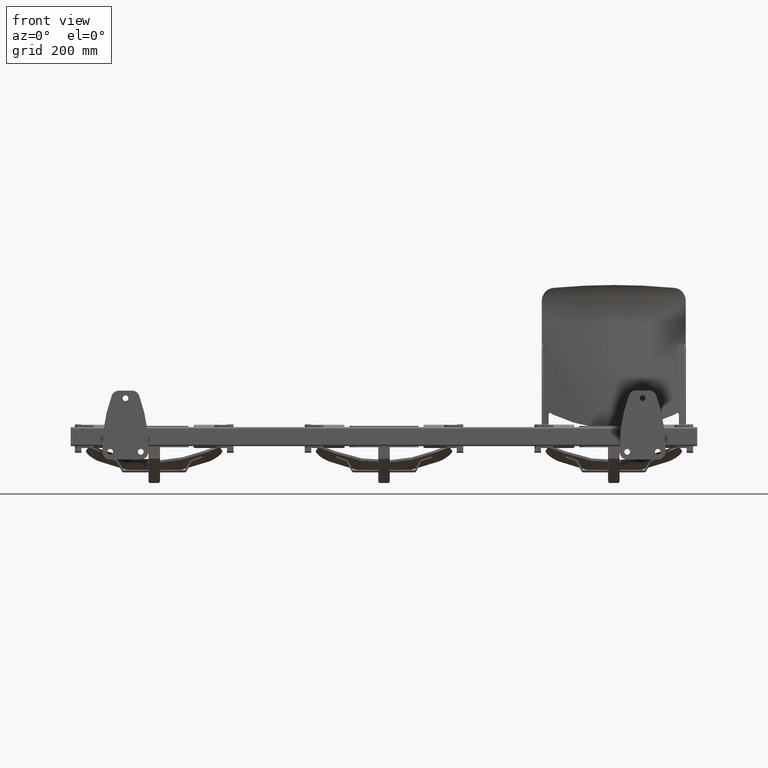
[diagram: clean part render]
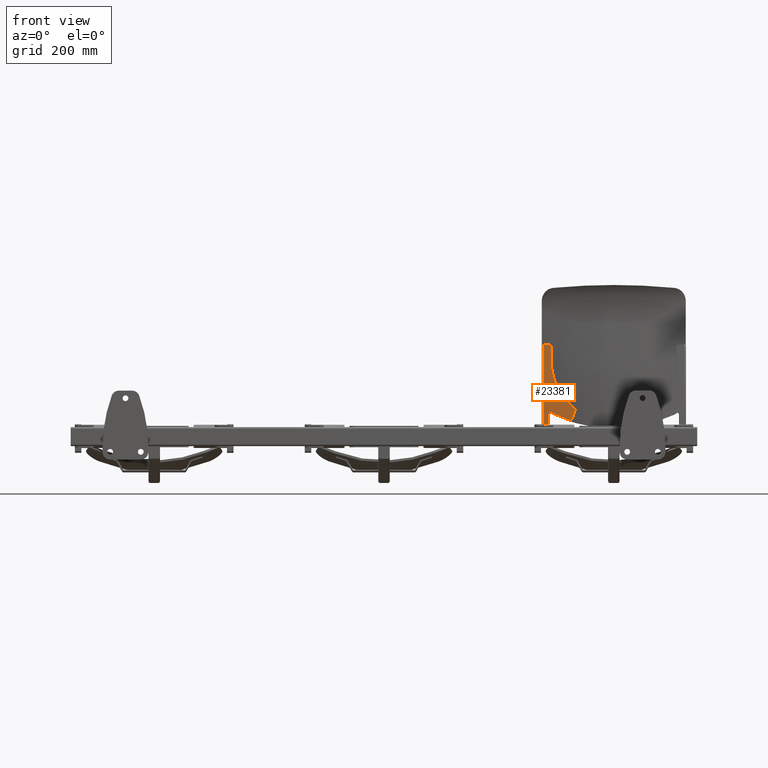
[diagram: same view with one face highlighted and labeled with its STEP entity id]
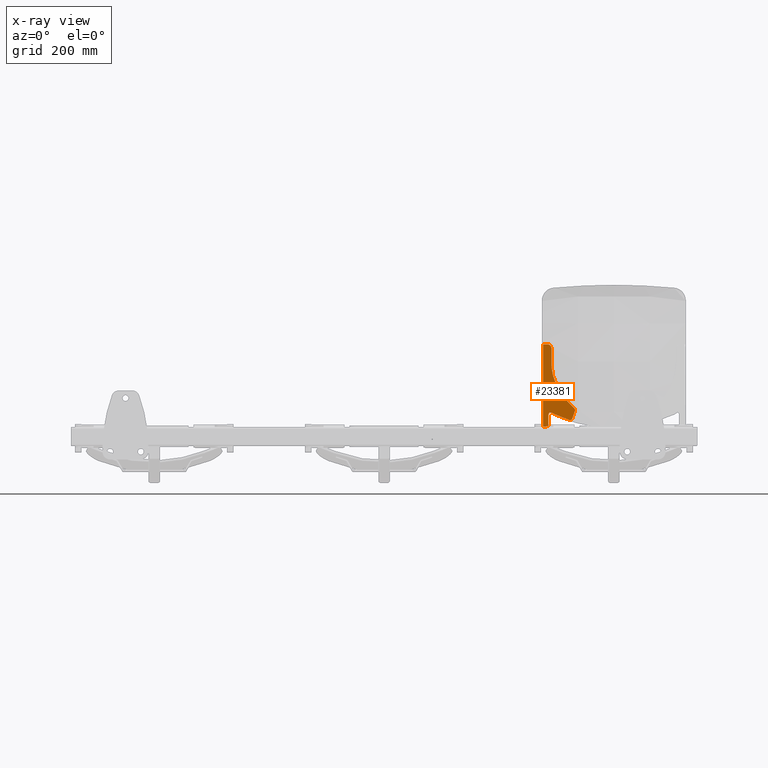
[diagram: x-ray of the same camera — body ghosted, the highlighted face saturated]
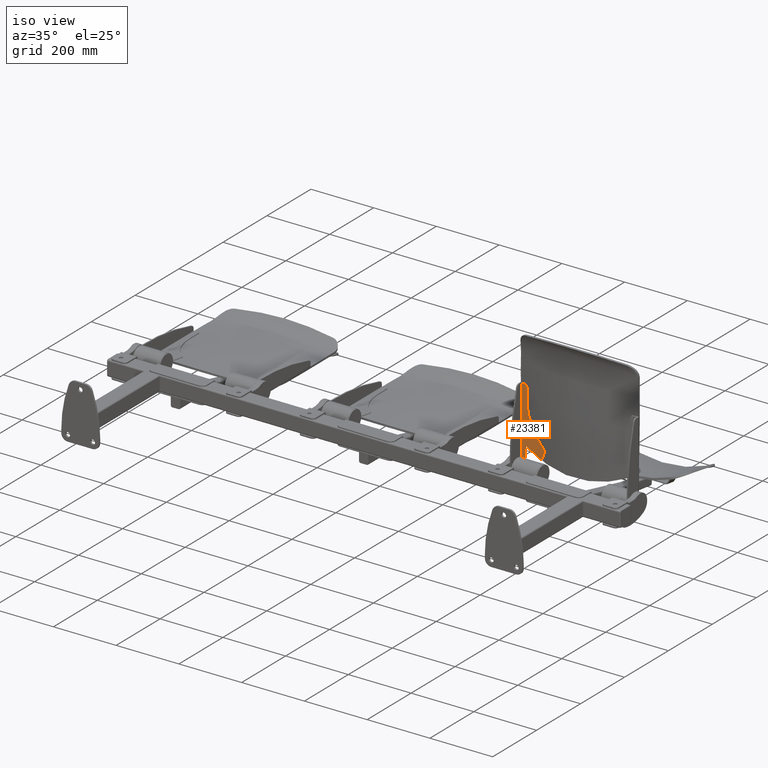
[diagram: same view with one face highlighted and labeled with its STEP entity id]
A machine part, front view. The second image highlights one B-rep face of the part: STEP entity #23381.
The next image is the same camera in x-ray: the body ghosted, the highlighted face saturated — about 0% of this face is hidden behind the body in this view.
A second angle (iso view) of the same face is appended — the face is thin or edge-on in the first view.
In plain terms, the highlighted planar face has unit normal (-0.1564, -0.9877, 0).
Its self-contained STEP definition (entity closure, byte-faithful):
#24 = FACE_OUTER_BOUND ( 'NONE', #1531, .T. ) ;
#531 = AXIS2_PLACEMENT_3D ( 'NONE', #21900, #21901, #21902 ) ;
#838 = VERTEX_POINT ( 'NONE', #11376 ) ;
#840 = VERTEX_POINT ( 'NONE', #11378 ) ;
#841 = VERTEX_POINT ( 'NONE', #11379 ) ;
#847 = VERTEX_POINT ( 'NONE', #11385 ) ;
#864 = VERTEX_POINT ( 'NONE', #11402 ) ;
#891 = VERTEX_POINT ( 'NONE', #11283 ) ;
#1406 = ORIENTED_EDGE ( 'NONE', *, *, #14386, .T. ) ;
#1410 = ORIENTED_EDGE ( 'NONE', *, *, #1906, .T. ) ;
#1411 = ORIENTED_EDGE ( 'NONE', *, *, #1909, .T. ) ;
#1414 = ORIENTED_EDGE ( 'NONE', *, *, #1894, .T. ) ;
#1415 = ORIENTED_EDGE ( 'NONE', *, *, #1897, .T. ) ;
#1416 = ORIENTED_EDGE ( 'NONE', *, *, #1912, .T. ) ;
#1417 = ORIENTED_EDGE ( 'NONE', *, *, #1914, .T. ) ;
#1418 = ORIENTED_EDGE ( 'NONE', *, *, #14387, .T. ) ;
#1419 = ORIENTED_EDGE ( 'NONE', *, *, #14379, .T. ) ;
#1420 = ORIENTED_EDGE ( 'NONE', *, *, #1899, .T. ) ;
#1421 = ORIENTED_EDGE ( 'NONE', *, *, #1903, .T. ) ;
#1424 = ORIENTED_EDGE ( 'NONE', *, *, #1885, .F. ) ;
#1425 = ORIENTED_EDGE ( 'NONE', *, *, #1891, .T. ) ;
#1531 = EDGE_LOOP ( 'NONE', ( #1418, #1419, #1424, #1425, #1414, #1415, #1420, #1421, #1410, #1411, #1416, #1417, #1406 ) ) ;
#1634 = CARTESIAN_POINT ( 'NONE',  ( -156.4679450697689200, 12.92662090743064400, 58.39610516779436700 ) ) ;
#1651 = CARTESIAN_POINT ( 'NONE',  ( -184.5000000000000000, 17.36646223870181400, 240.0000000000000600 ) ) ;
#1885 = EDGE_CURVE ( 'NONE', #23051, #23047, #23332, .T. ) ;
#1891 = EDGE_CURVE ( 'NONE', #23051, #840, #7215, .T. ) ;
#1894 = EDGE_CURVE ( 'NONE', #840, #838, #23319, .T. ) ;
#1897 = EDGE_CURVE ( 'NONE', #838, #10979, #23315, .T. ) ;
#1899 = EDGE_CURVE ( 'NONE', #10979, #23195, #23347, .T. ) ;
#1903 = EDGE_CURVE ( 'NONE', #23195, #891, #23375, .T. ) ;
#1906 = EDGE_CURVE ( 'NONE', #891, #11257, #23374, .T. ) ;
#1909 = EDGE_CURVE ( 'NONE', #11257, #864, #23360, .T. ) ;
#1912 = EDGE_CURVE ( 'NONE', #864, #841, #23361, .T. ) ;
#1914 = EDGE_CURVE ( 'NONE', #841, #847, #7232, .T. ) ;
#3332 = B_SPLINE_CURVE_WITH_KNOTS ( 'NONE', 3,
 ( #19762, #19763, #19770, #19771, #19772, #19773, #19774, #19775, #19776, #19777, #19778, #19779, #19780, #19781, #19782, #19783, #19784, #19785, #19786, #19787, #19788, #19789, #19790, #19791, #19792, #19793, #19794, #19795, #19796, #19797, #19798, #19799, #19800, #19801, #19802, #19803, #19804, #19805, #19806, #19807, #19808, #19809, #19810, #19811, #19812, #19813, #19814, #19815 ),
 .UNSPECIFIED., .F., .F.,
 ( 4, 1, 1, 1, 1, 2, 2, 1, 1, 1, 2, 2, 1, 1, 2, 2, 2, 1, 1, 2, 2, 1, 1, 1, 2, 2, 1, 1, 1, 1, 2, 2, 4 ),
 ( 0.0000000000000000000, 0.06249999999992215900, 0.09374999999988015100, 0.1093749999998595200, 0.1171874999998492000, 0.1210937499998473300, 0.1249999999998454600, 0.1874999999998646600, 0.2187499999998724400, 0.2343749999998779900, 0.2421874999998817100, 0.2499999999998853700, 0.3124999999998908100, 0.3437499999998912500, 0.3593749999998892000, 0.3749999999998871500, 0.4999999999998944200, 0.5624999999998997500, 0.5937499999999007500, 0.6093749999999033000, 0.6249999999999058500, 0.6874999999998991900, 0.7187499999998969700, 0.7343749999998948600, 0.7421874999998947500, 0.7499999999998946400, 0.8124999999999226200, 0.8437499999999367200, 0.8593749999999411600, 0.8671874999999438200, 0.8710937499999457100, 0.8749999999999476000, 1.000000000000000000 ),
 .UNSPECIFIED. ) ;
#7215 = LINE ( 'NONE', #22327, #7218 ) ;
#7218 = VECTOR ( 'NONE', #22329, 1000.000000000000000 ) ;
#7232 = LINE ( 'NONE', #15464, #7240 ) ;
#7240 = VECTOR ( 'NONE', #15525, 1000.000000000000000 ) ;
#10979 = VERTEX_POINT ( 'NONE', #1634 ) ;
#11000 = VERTEX_POINT ( 'NONE', #1651 ) ;
#11257 = VERTEX_POINT ( 'NONE', #22799 ) ;
#11283 = CARTESIAN_POINT ( 'NONE',  ( -108.2284604172176200, 5.286237129192353600, 46.75794247163295100 ) ) ;
#11376 = CARTESIAN_POINT ( 'NONE',  ( -161.3694929007366500, 13.70294981736237900, 61.25785339527701000 ) ) ;
#11378 = CARTESIAN_POINT ( 'NONE',  ( -170.7216098692874800, 15.18417962927588700, 56.36212323050915500 ) ) ;
#11379 = CARTESIAN_POINT ( 'NONE',  ( -162.8201031445264600, 13.93270390895408400, 194.1889626906064200 ) ) ;
#11385 = CARTESIAN_POINT ( 'NONE',  ( -162.8201031445264800, 13.93270390895408400, 230.0000000000000300 ) ) ;
#11402 = CARTESIAN_POINT ( 'NONE',  ( -104.6669652350594200, 4.722151708047689100, 75.03869829316761300 ) ) ;
#14379 = EDGE_CURVE ( 'NONE', #11000, #23047, #18535, .T. ) ;
#14386 = EDGE_CURVE ( 'NONE', #847, #23193, #3332, .T. ) ;
#14387 = EDGE_CURVE ( 'NONE', #23193, #11000, #18546, .T. ) ;
#15313 = CARTESIAN_POINT ( 'NONE',  ( -168.4235427904264700, 14.82020156116222300, 61.13688680795775100 ) ) ;
#15314 = CARTESIAN_POINT ( 'NONE',  ( -167.9903763644841500, 14.75159473922197300, 61.44413525971329900 ) ) ;
#15315 = CARTESIAN_POINT ( 'NONE',  ( -167.2807016268071700, 14.63919330308253600, 61.81571995212224400 ) ) ;
#15316 = CARTESIAN_POINT ( 'NONE',  ( -166.9167514483966100, 14.58154925776896800, 61.97607935634837200 ) ) ;
#15317 = CARTESIAN_POINT ( 'NONE',  ( -166.4761954901666200, 14.51177204889307900, 62.11865767948339800 ) ) ;
#15318 = CARTESIAN_POINT ( 'NONE',  ( -166.2519306568638600, 14.47625198878594900, 62.17881992893542500 ) ) ;
#15319 = CARTESIAN_POINT ( 'NONE',  ( -166.1549628309796300, 14.46089379395378100, 62.20221941181869600 ) ) ;
#15320 = CARTESIAN_POINT ( 'NONE',  ( -166.0901277635240900, 14.45062492808143200, 62.21728921411634200 ) ) ;
#15321 = CARTESIAN_POINT ( 'NONE',  ( -166.0588542349370900, 14.44567168775920200, 62.22429302925439000 ) ) ;
#15322 = CARTESIAN_POINT ( 'NONE',  ( -165.4834668940858900, 14.35453928580866100, 62.34790356054105600 ) ) ;
#15323 = CARTESIAN_POINT ( 'NONE',  ( -164.9355324399976200, 14.26775499396336700, 62.38653049704801400 ) ) ;
#15324 = CARTESIAN_POINT ( 'NONE',  ( -164.1071431496432100, 14.13655101983974800, 62.32812107957990100 ) ) ;
#15325 = CARTESIAN_POINT ( 'NONE',  ( -163.6988026961014700, 14.07187624564368600, 62.27032112628307200 ) ) ;
#15326 = CARTESIAN_POINT ( 'NONE',  ( -163.2326503356650600, 13.99804496492999400, 62.15284616945192700 ) ) ;
#15327 = CARTESIAN_POINT ( 'NONE',  ( -163.0021353642874300, 13.96153498020191800, 62.08159827154016600 ) ) ;
#15328 = CARTESIAN_POINT ( 'NONE',  ( -162.9038920641627600, 13.94597477009604200, 62.04838265397166500 ) ) ;
#15329 = CARTESIAN_POINT ( 'NONE',  ( -162.8385184930720900, 13.93562061362682900, 62.02564317466426000 ) ) ;
#15330 = CARTESIAN_POINT ( 'NONE',  ( -162.8046107180572600, 13.93025014965845000, 62.01350452628800300 ) ) ;
#15331 = CARTESIAN_POINT ( 'NONE',  ( -162.2728022240748900, 13.84601995897923600, 61.81809917678440100 ) ) ;
#15332 = CARTESIAN_POINT ( 'NONE',  ( -161.8048572358304700, 13.77190475391346100, 61.57004694388865600 ) ) ;
#15333 = CARTESIAN_POINT ( 'NONE',  ( -161.3694929007366500, 13.70294981736237900, 61.25785339527701000 ) ) ;
#15334 = CARTESIAN_POINT ( 'NONE',  ( -161.3694929007366500, 13.70294981736237900, 61.25785339527701000 ) ) ;
#15336 = CARTESIAN_POINT ( 'NONE',  ( -159.8123508253176800, 13.45632274124134600, 60.14092830488886000 ) ) ;
#15340 = CARTESIAN_POINT ( 'NONE',  ( -153.1572290060092600, 12.40225499659859700, 56.86549616546415100 ) ) ;
#15343 = CARTESIAN_POINT ( 'NONE',  ( -158.1785014543505100, 13.19754642304612000, 59.18701218561312100 ) ) ;
#15344 = CARTESIAN_POINT ( 'NONE',  ( -156.4679450697689200, 12.92662090743064400, 58.39610516779436700 ) ) ;
#15345 = CARTESIAN_POINT ( 'NONE',  ( -156.4679450697689200, 12.92662090743064400, 58.39610516779436700 ) ) ;
#15349 = CARTESIAN_POINT ( 'NONE',  ( -148.1591641727549100, 11.61063929527788100, 54.64200151654588900 ) ) ;
#15350 = CARTESIAN_POINT ( 'NONE',  ( -142.2721040030562300, 10.67822056514329200, 52.17465707949674700 ) ) ;
#15351 = CARTESIAN_POINT ( 'NONE',  ( -139.3145777854813000, 10.20979443042755200, 50.97266802431105500 ) ) ;
#15352 = CARTESIAN_POINT ( 'NONE',  ( -138.0440673780794900, 10.00856535062471600, 50.46431910708980700 ) ) ;
#15353 = CARTESIAN_POINT ( 'NONE',  ( -137.1963939573008100, 9.874307070296705300, 50.12692855100603900 ) ) ;
#15354 = CARTESIAN_POINT ( 'NONE',  ( -136.7711029137859100, 9.806947586394558800, 49.95854610259685600 ) ) ;
#15355 = CARTESIAN_POINT ( 'NONE',  ( -129.5736071962786600, 8.666976255438951800, 47.12388068475492300 ) ) ;
#15356 = CARTESIAN_POINT ( 'NONE',  ( -122.7358951683104500, 7.583989062788877100, 44.65618467251363200 ) ) ;
#15357 = CARTESIAN_POINT ( 'NONE',  ( -115.8345847287967700, 6.490928871320640800, 42.38871304127606300 ) ) ;
#15363 = CARTESIAN_POINT ( 'NONE',  ( -115.8345847287967700, 6.490928871320640800, 42.38871304127606300 ) ) ;
#15364 = CARTESIAN_POINT ( 'NONE',  ( -115.6410349692736600, 6.460273600983619200, 42.32515793097505300 ) ) ;
#15369 = CARTESIAN_POINT ( 'NONE',  ( -115.3474983850701800, 6.413781973379772500, 42.24528675955198800 ) ) ;
#15370 = CARTESIAN_POINT ( 'NONE',  ( -115.0491438836115800, 6.366527262647951900, 42.18860782921206000 ) ) ;
#15371 = CARTESIAN_POINT ( 'NONE',  ( -114.8491702343602900, 6.334854548131629000, 42.15597570700391100 ) ) ;
#15372 = CARTESIAN_POINT ( 'NONE',  ( -114.7508434787959700, 6.319281119982648900, 42.14247905213682800 ) ) ;
#15373 = CARTESIAN_POINT ( 'NONE',  ( -114.2345791482694200, 6.237512882932681400, 42.08545545057027900 ) ) ;
#15374 = CARTESIAN_POINT ( 'NONE',  ( -113.8203749487639600, 6.171909382613934600, 42.08396964892765600 ) ) ;
#15375 = CARTESIAN_POINT ( 'NONE',  ( -113.2003614459112300, 6.073708890970951100, 42.14762415862247700 ) ) ;
#15376 = CARTESIAN_POINT ( 'NONE',  ( -112.8935661061555600, 6.025117282789577400, 42.19565319218608600 ) ) ;
#15377 = CARTESIAN_POINT ( 'NONE',  ( -112.5412581801977200, 5.969317189114846700, 42.28004017743028700 ) ) ;
#15378 = CARTESIAN_POINT ( 'NONE',  ( -112.3914733484494800, 5.945593602369296300, 42.32228169526777600 ) ) ;
#15379 = CARTESIAN_POINT ( 'NONE',  ( -112.2918844115898200, 5.929820264342267500, 42.35179285538579600 ) ) ;
#15380 = CARTESIAN_POINT ( 'NONE',  ( -112.2410701512538500, 5.921772076158448300, 42.36759865111339700 ) ) ;
#15381 = CARTESIAN_POINT ( 'NONE',  ( -111.8057109006709900, 5.852817944914775700, 42.50917393168298000 ) ) ;
#15382 = CARTESIAN_POINT ( 'NONE',  ( -111.4345697974535900, 5.794034969000260400, 42.67412374831705800 ) ) ;
#15383 = CARTESIAN_POINT ( 'NONE',  ( -110.9042630432515600, 5.710042630535647300, 42.97869134798521200 ) ) ;
#15384 = CARTESIAN_POINT ( 'NONE',  ( -110.6480677733735500, 5.669465286102226100, 43.14393673357950800 ) ) ;
#15385 = CARTESIAN_POINT ( 'NONE',  ( -110.4053096643299500, 5.631016178867117400, 43.32862449781411800 ) ) ;
#15386 = CARTESIAN_POINT ( 'NONE',  ( -110.2464569607085800, 5.605856382310006900, 43.45607020255727800 ) ) ;
#15387 = CARTESIAN_POINT ( 'NONE',  ( -110.1700878149143400, 5.593760697895319800, 43.52056095645640700 ) ) ;
#15388 = CARTESIAN_POINT ( 'NONE',  ( -109.7800652938363200, 5.531987199180411700, 43.86773967507710400 ) ) ;
#15389 = CARTESIAN_POINT ( 'NONE',  ( -109.4994044216353300, 5.487534884015868600, 44.17616245662567600 ) ) ;
#15390 = CARTESIAN_POINT ( 'NONE',  ( -109.1272984559987300, 5.428599088907087200, 44.68230048062412200 ) ) ;
#15391 = CARTESIAN_POINT ( 'NONE',  ( -108.9552202315044600, 5.401344575628527900, 44.94390627015295100 ) ) ;
#15392 = CARTESIAN_POINT ( 'NONE',  ( -108.7789181299949600, 5.373421065952907600, 45.26405238528003100 ) ) ;
#15393 = CARTESIAN_POINT ( 'NONE',  ( -108.7086006208624300, 5.362283866623935000, 45.40445915476523500 ) ) ;
#15394 = CARTESIAN_POINT ( 'NONE',  ( -108.6628868446344100, 5.355043515760940000, 45.49877506588281800 ) ) ;
#15395 = CARTESIAN_POINT ( 'NONE',  ( -108.6400982309135800, 5.351434153930998900, 45.54742300153415600 ) ) ;
#15396 = CARTESIAN_POINT ( 'NONE',  ( -108.4494933714632600, 5.321245309943818400, 45.96803865545133000 ) ) ;
#15397 = CARTESIAN_POINT ( 'NONE',  ( -108.3193402061368600, 5.300631073697124100, 46.35596678793177000 ) ) ;
#15398 = CARTESIAN_POINT ( 'NONE',  ( -108.2284604172176200, 5.286237129192353600, 46.75794247163295100 ) ) ;
#15400 = CARTESIAN_POINT ( 'NONE',  ( -107.5515076543958500, 5.179018344726669600, 49.75433132830728800 ) ) ;
#15405 = CARTESIAN_POINT ( 'NONE',  ( -108.2284604172176200, 5.286237129192353600, 46.75794247163295100 ) ) ;
#15407 = CARTESIAN_POINT ( 'NONE',  ( -106.7037394702512600, 5.044745055355983600, 52.70052557418326000 ) ) ;
#15408 = CARTESIAN_POINT ( 'NONE',  ( -104.6672961910739200, 4.722204126330824500, 58.49046658805573200 ) ) ;
#15409 = CARTESIAN_POINT ( 'NONE',  ( -103.4850905575212700, 4.534961148712080900, 61.31569219610351200 ) ) ;
#15410 = CARTESIAN_POINT ( 'NONE',  ( -102.1389009300046700, 4.321745657987156300, 64.07117290526275600 ) ) ;
#15411 = CARTESIAN_POINT ( 'NONE',  ( -102.1389009300046700, 4.321745657987156300, 64.07117290526275600 ) ) ;
#15412 = CARTESIAN_POINT ( 'NONE',  ( -102.0331293887796600, 4.304993091627983000, 64.28772808163951400 ) ) ;
#15417 = CARTESIAN_POINT ( 'NONE',  ( -101.8880306294758600, 4.282011705843864900, 64.61794427587291500 ) ) ;
#15418 = CARTESIAN_POINT ( 'NONE',  ( -101.7424762105553000, 4.258958150666371600, 65.01261750439795200 ) ) ;
#15419 = CARTESIAN_POINT ( 'NONE',  ( -101.6756308678285000, 4.248370888470286200, 65.21230936914034300 ) ) ;
#15420 = CARTESIAN_POINT ( 'NONE',  ( -101.6482539781027700, 4.244034815113248100, 65.29839629341849200 ) ) ;
#15421 = CARTESIAN_POINT ( 'NONE',  ( -101.6302851881300700, 4.241188838370114000, 65.35589973105534500 ) ) ;
#15422 = CARTESIAN_POINT ( 'NONE',  ( -101.6218392029677500, 4.239851125737189400, 65.38339011692571000 ) ) ;
#15423 = CARTESIAN_POINT ( 'NONE',  ( -101.5399473025744000, 4.226880722926279300, 65.65502167241858400 ) ) ;
#15424 = CARTESIAN_POINT ( 'NONE',  ( -101.4463248155890900, 4.212052377723318300, 66.02070359308612500 ) ) ;
#15425 = CARTESIAN_POINT ( 'NONE',  ( -101.3643403294662900, 4.199067310773466800, 66.45346889888300300 ) ) ;
#15426 = CARTESIAN_POINT ( 'NONE',  ( -101.3350416387051400, 4.194426854035017800, 66.64025468672841200 ) ) ;
#15427 = CARTESIAN_POINT ( 'NONE',  ( -101.3168064043259600, 4.191538676643684600, 66.76507075473730900 ) ) ;
#15428 = CARTESIAN_POINT ( 'NONE',  ( -101.3085740505826600, 4.190234799903493900, 66.82572754121501600 ) ) ;
#15429 = CARTESIAN_POINT ( 'NONE',  ( -101.2682888433653500, 4.183854249905029300, 67.14871551971090500 ) ) ;
#15430 = CARTESIAN_POINT ( 'NONE',  ( -101.2368974357160300, 4.178882339373488200, 67.53707465536678000 ) ) ;
#15431 = CARTESIAN_POINT ( 'NONE',  ( -101.2309322895838200, 4.177937553041882500, 67.92659413321385400 ) ) ;
#15432 = CARTESIAN_POINT ( 'NONE',  ( -101.2326058058327500, 4.178202611976345800, 68.18653163893213800 ) ) ;
#15433 = CARTESIAN_POINT ( 'NONE',  ( -101.2361720641142900, 4.178767451798316700, 68.31470935564944100 ) ) ;
#15434 = CARTESIAN_POINT ( 'NONE',  ( -101.2690854564799000, 4.183980421027329500, 68.97544220430626200 ) ) ;
#15435 = CARTESIAN_POINT ( 'NONE',  ( -101.3418714959240500, 4.195508597148135600, 69.49845729042154100 ) ) ;
#15436 = CARTESIAN_POINT ( 'NONE',  ( -101.5200323683374400, 4.223726507213059200, 70.27158040469835500 ) ) ;
#15437 = CARTESIAN_POINT ( 'NONE',  ( -101.6257867601364200, 4.240476357369995100, 70.65270976212903500 ) ) ;
#15438 = CARTESIAN_POINT ( 'NONE',  ( -101.7783463061882300, 4.264639415687574000, 71.08785432964303700 ) ) ;
#15439 = CARTESIAN_POINT ( 'NONE',  ( -101.8499817021289100, 4.275985347781068300, 71.27230778368721100 ) ) ;
#15440 = CARTESIAN_POINT ( 'NONE',  ( -101.8991281290554000, 4.283769377103771700, 71.39482406974100600 ) ) ;
#15441 = CARTESIAN_POINT ( 'NONE',  ( -101.9248403085120200, 4.287841786256534800, 71.45689624287921000 ) ) ;
#15442 = CARTESIAN_POINT ( 'NONE',  ( -102.0524327681066000, 4.308050446559052600, 71.75572168263993000 ) ) ;
#15443 = CARTESIAN_POINT ( 'NONE',  ( -102.2205264753483400, 4.334673874302613000, 72.10624795337631100 ) ) ;
#15444 = CARTESIAN_POINT ( 'NONE',  ( -102.4428556229881900, 4.369887351919380200, 72.50108281952670100 ) ) ;
#15445 = CARTESIAN_POINT ( 'NONE',  ( -102.5437580768033700, 4.385868730594267200, 72.66727366579633000 ) ) ;
#15446 = CARTESIAN_POINT ( 'NONE',  ( -102.6122749423241800, 4.396720735992572800, 72.77739554189479100 ) ) ;
#15447 = CARTESIAN_POINT ( 'NONE',  ( -102.6482927005761800, 4.402425388475060200, 72.83385910728156900 ) ) ;
#15448 = CARTESIAN_POINT ( 'NONE',  ( -102.8201524592504200, 4.429645300166988000, 73.09711050022949100 ) ) ;
#15449 = CARTESIAN_POINT ( 'NONE',  ( -103.0389685126274800, 4.464302358315141100, 73.40309533603981200 ) ) ;
#15450 = CARTESIAN_POINT ( 'NONE',  ( -103.3162765084280900, 4.508223630027536900, 73.74272318196270200 ) ) ;
#15451 = CARTESIAN_POINT ( 'NONE',  ( -103.4604361563769000, 4.531056275185290100, 73.90819848929355400 ) ) ;
#15452 = CARTESIAN_POINT ( 'NONE',  ( -103.5233986447939300, 4.541028553674662400, 73.97818677480019300 ) ) ;
#15453 = CARTESIAN_POINT ( 'NONE',  ( -103.5656358108837300, 4.547718263586696200, 74.02463903106031800 ) ) ;
#15454 = CARTESIAN_POINT ( 'NONE',  ( -103.5878614361220100, 4.551238456800918500, 74.04881261813496000 ) ) ;
#15455 = CARTESIAN_POINT ( 'NONE',  ( -103.9347430628010000, 4.606179109101333300, 74.42228167530841200 ) ) ;
#15456 = CARTESIAN_POINT ( 'NONE',  ( -104.2876427285903600, 4.662072925158094300, 74.74492064429631500 ) ) ;
#15457 = CARTESIAN_POINT ( 'NONE',  ( -104.6669652350594200, 4.722151708047689100, 75.03869829316761300 ) ) ;
#15458 = CARTESIAN_POINT ( 'NONE',  ( -106.8677948081333500, 5.070728868228693300, 76.74282176865770600 ) ) ;
#15459 = CARTESIAN_POINT ( 'NONE',  ( -104.6669652350594200, 4.722151708047689100, 75.03869829316761300 ) ) ;
#15464 = CARTESIAN_POINT ( 'NONE',  ( -162.8201031445264000, 13.93270390895408400, 24.00000000000002100 ) ) ;
#15466 = CARTESIAN_POINT ( 'NONE',  ( -110.0932179778923700, 5.581585711780756600, 79.38840320280940000 ) ) ;
#15467 = CARTESIAN_POINT ( 'NONE',  ( -113.7235245937038400, 6.156569793332511900, 82.63135826259046700 ) ) ;
#15468 = CARTESIAN_POINT ( 'NONE',  ( -115.5055061310494000, 6.438807941793639200, 84.29194663913203600 ) ) ;
#15469 = CARTESIAN_POINT ( 'NONE',  ( -116.3882039570821400, 6.578613542945517700, 85.13201853906559800 ) ) ;
#15470 = CARTESIAN_POINT ( 'NONE',  ( -116.8274796344384600, 6.648187975251781600, 85.55449891694800600 ) ) ;
#15471 = CARTESIAN_POINT ( 'NONE',  ( -117.0152963742355300, 6.677935224468114100, 85.73608574202246800 ) ) ;
#15472 = CARTESIAN_POINT ( 'NONE',  ( -117.1404088085925800, 6.697751087361394800, 85.85726002673476400 ) ) ;
#15473 = CARTESIAN_POINT ( 'NONE',  ( -117.2016648715890300, 6.707453094615574200, 85.91668970338665200 ) ) ;
#15474 = CARTESIAN_POINT ( 'NONE',  ( -119.3040382138613500, 7.040436319784589600, 87.96002363517823100 ) ) ;
#15475 = CARTESIAN_POINT ( 'NONE',  ( -122.2734029487180600, 7.510737491434285900, 91.01569463692985100 ) ) ;
#15476 = CARTESIAN_POINT ( 'NONE',  ( -125.5825543117207100, 8.034855578012624700, 94.72685474747847000 ) ) ;
#15477 = CARTESIAN_POINT ( 'NONE',  ( -127.1983531196395300, 8.290772967881896000, 96.61898745487909000 ) ) ;
#15478 = CARTESIAN_POINT ( 'NONE',  ( -127.9965583052033200, 8.417196249461554200, 97.57419197161094400 ) ) ;
#15479 = CARTESIAN_POINT ( 'NONE',  ( -128.3932373433862900, 8.480024036912638500, 98.05407877073476200 ) ) ;
#15480 = CARTESIAN_POINT ( 'NONE',  ( -128.5627233123363700, 8.506867977247655000, 98.26023408623591100 ) ) ;
#15481 = CARTESIAN_POINT ( 'NONE',  ( -128.6755985509412900, 8.524745658740590300, 98.39777975089188500 ) ) ;
#15482 = CARTESIAN_POINT ( 'NONE',  ( -128.7312221230140200, 8.533555567072184500, 98.46568197486608700 ) ) ;
#15483 = CARTESIAN_POINT ( 'NONE',  ( -130.6148144541620900, 8.831887284240650600, 100.7693005062921300 ) ) ;
#15484 = CARTESIAN_POINT ( 'NONE',  ( -133.2544042283327300, 9.249957233309039900, 104.1946865770359100 ) ) ;
#15485 = CARTESIAN_POINT ( 'NONE',  ( -136.1586090752263700, 9.709938092572079100, 108.3216396882266300 ) ) ;
#15486 = CARTESIAN_POINT ( 'NONE',  ( -137.5668823595967800, 9.932986668541088800, 110.4177835843194700 ) ) ;
#15487 = CARTESIAN_POINT ( 'NONE',  ( -138.2600617170129200, 10.04277549310995900, 111.4740223674902600 ) ) ;
#15488 = CARTESIAN_POINT ( 'NONE',  ( -138.5547905948836800, 10.08945596147899300, 111.9284461678044500 ) ) ;
#15489 = CARTESIAN_POINT ( 'NONE',  ( -138.7507547379988800, 10.12049363260998200, 112.2317842649245400 ) ) ;
#15490 = CARTESIAN_POINT ( 'NONE',  ( -138.8478228032255700, 10.13586770379428600, 112.3826287636790700 ) ) ;
#15491 = CARTESIAN_POINT ( 'NONE',  ( -142.0855654880227200, 10.64867576684073700, 117.4341679068212200 ) ) ;
#15492 = CARTESIAN_POINT ( 'NONE',  ( -144.9333989152730200, 11.09972827035327100, 122.5019154507100900 ) ) ;
#15493 = CARTESIAN_POINT ( 'NONE',  ( -148.7660924654823900, 11.70676729323864200, 130.3546725056249300 ) ) ;
#15494 = CARTESIAN_POINT ( 'NONE',  ( -150.5663752408099200, 11.99190407303478300, 134.3309614368487200 ) ) ;
#15495 = CARTESIAN_POINT ( 'NONE',  ( -152.4635931457484600, 12.29239386908215400, 139.0573083965340100 ) ) ;
#15496 = CARTESIAN_POINT ( 'NONE',  ( -153.3614240983150700, 12.43459632201046400, 141.4423176780242700 ) ) ;
#15497 = CARTESIAN_POINT ( 'NONE',  ( -153.7976450746228100, 12.50368693720079000, 142.6402812691814300 ) ) ;
#15498 = CARTESIAN_POINT ( 'NONE',  ( -153.9818766716169900, 12.53286635558081000, 143.1548640119084400 ) ) ;
#15499 = CARTESIAN_POINT ( 'NONE',  ( -154.1040932362810200, 12.55222355777350200, 143.4981791237461300 ) ) ;
#15500 = CARTESIAN_POINT ( 'NONE',  ( -154.1653162733112500, 12.56192033422850700, 143.6711515460124200 ) ) ;
#15501 = CARTESIAN_POINT ( 'NONE',  ( -155.1867914931148400, 12.72370611522247500, 146.5736059942250100 ) ) ;
#15502 = CARTESIAN_POINT ( 'NONE',  ( -156.5095064132990800, 12.93320357756477200, 150.7066463367087600 ) ) ;
#15503 = CARTESIAN_POINT ( 'NONE',  ( -157.8437802698120700, 13.14453179556823600, 155.5905775223888600 ) ) ;
#15504 = CARTESIAN_POINT ( 'NONE',  ( -158.4586938104764600, 13.24192453255433400, 158.0480558117577900 ) ) ;
#15505 = CARTESIAN_POINT ( 'NONE',  ( -158.7530947339105000, 13.28855305804348300, 159.2806731305745400 ) ) ;
#15506 = CARTESIAN_POINT ( 'NONE',  ( -158.8970312339031400, 13.31135036003707300, 159.8979513335160900 ) ) ;
#15507 = CARTESIAN_POINT ( 'NONE',  ( -158.9580188849590500, 13.32100985501626800, 160.1627068941051800 ) ) ;
#15508 = CARTESIAN_POINT ( 'NONE',  ( -158.9985218922474000, 13.32742490115710300, 160.3392567699041800 ) ) ;
#15509 = CARTESIAN_POINT ( 'NONE',  ( -159.0189666742940600, 13.33066303651912000, 160.4287457855074600 ) ) ;
#15510 = CARTESIAN_POINT ( 'NONE',  ( -159.6731944832080200, 13.43428254187869800, 163.3040395245830000 ) ) ;
#15511 = CARTESIAN_POINT ( 'NONE',  ( -160.5054494033012700, 13.56609877160501100, 167.5070636326752300 ) ) ;
#15512 = CARTESIAN_POINT ( 'NONE',  ( -161.2675524369439000, 13.68680403405812600, 172.4469544302974400 ) ) ;
#15513 = CARTESIAN_POINT ( 'NONE',  ( -161.5963886938153600, 13.73888658056112700, 174.9259904969871700 ) ) ;
#15514 = CARTESIAN_POINT ( 'NONE',  ( -161.7477530072635300, 13.76286033263173200, 176.1677811973018500 ) ) ;
#15515 = CARTESIAN_POINT ( 'NONE',  ( -161.8201717102408600, 13.77433032837181200, 176.7892447142014600 ) ) ;
#15516 = CARTESIAN_POINT ( 'NONE',  ( -161.8505089857139000, 13.77913528076858700, 177.0557079714604400 ) ) ;
#15517 = CARTESIAN_POINT ( 'NONE',  ( -161.8705784334699400, 13.78231396901904100, 177.2333771985255200 ) ) ;
#15518 = CARTESIAN_POINT ( 'NONE',  ( -161.8807311445878300, 13.78392200048722700, 177.3239855020907500 ) ) ;
#15519 = CARTESIAN_POINT ( 'NONE',  ( -162.5101672765265400, 13.88361488996438100, 182.9855834466034100 ) ) ;
#15520 = CARTESIAN_POINT ( 'NONE',  ( -162.8200633989063400, 13.93269761386625700, 188.5782086738291200 ) ) ;
#15521 = CARTESIAN_POINT ( 'NONE',  ( -162.8201031445264600, 13.93270390895408400, 194.1889626906064200 ) ) ;
#15525 = DIRECTION ( 'NONE',  ( 0.0000000000000000000, -2.465190328815658600E-032, 1.000000000000000000 ) ) ;
#18535 = LINE ( 'NONE', #19736, #18539 ) ;
#18539 = VECTOR ( 'NONE', #19740, 1000.000000000000000 ) ;
#18546 = LINE ( 'NONE', #19768, #18548 ) ;
#18548 = VECTOR ( 'NONE', #19816, 1000.000000000000100 ) ;
#19736 = CARTESIAN_POINT ( 'NONE',  ( -184.5000000000000000, 17.36646223870187800, 24.00000000000002100 ) ) ;
#19740 = DIRECTION ( 'NONE',  ( -0.0000000000000000000, 2.465190328815658600E-032, -1.000000000000000000 ) ) ;
#19762 = CARTESIAN_POINT ( 'NONE',  ( -162.8201031445264800, 13.93270390895408400, 230.0000000000000300 ) ) ;
#19763 = CARTESIAN_POINT ( 'NONE',  ( -162.8201351925240800, 13.93270898485821400, 230.3059110531486600 ) ) ;
#19768 = CARTESIAN_POINT ( 'NONE',  ( -172.6969865504779300, 15.49704855935636700, 240.0000000000000600 ) ) ;
#19770 = CARTESIAN_POINT ( 'NONE',  ( -162.8407705947290900, 13.93597731148733100, 230.7627981585250400 ) ) ;
#19771 = CARTESIAN_POINT ( 'NONE',  ( -162.9008730585001400, 13.94549660657382800, 231.2923690346919200 ) ) ;
#19772 = CARTESIAN_POINT ( 'NONE',  ( -162.9399312473519800, 13.95168281595521800, 231.5562884527490700 ) ) ;
#19773 = CARTESIAN_POINT ( 'NONE',  ( -162.9617120810195300, 13.95513256110545300, 231.6880316567709000 ) ) ;
#19774 = CARTESIAN_POINT ( 'NONE',  ( -162.9715292395716500, 13.95668744626830300, 231.7444466359932000 ) ) ;
#19775 = CARTESIAN_POINT ( 'NONE',  ( -162.9781812376178300, 13.95774101925589700, 231.7820463123790700 ) ) ;
#19776 = CARTESIAN_POINT ( 'NONE',  ( -162.9813541823784000, 13.95824356433598200, 231.7997099373654900 ) ) ;
#19777 = CARTESIAN_POINT ( 'NONE',  ( -163.0432323430280800, 13.96804410217878700, 232.1383599122217400 ) ) ;
#19778 = CARTESIAN_POINT ( 'NONE',  ( -163.1529837739738000, 13.98542702114394300, 232.6100715247339700 ) ) ;
#19779 = CARTESIAN_POINT ( 'NONE',  ( -163.3202166585094800, 14.01191410796498400, 233.1492324174653600 ) ) ;
#19780 = CARTESIAN_POINT ( 'NONE',  ( -163.4136304878853400, 14.02670940504926000, 233.4160205333643900 ) ) ;
#19781 = CARTESIAN_POINT ( 'NONE',  ( -163.4557644262839600, 14.03338276530117800, 233.5297599407925900 ) ) ;
#19782 = CARTESIAN_POINT ( 'NONE',  ( -163.4843202607928000, 14.03790556516787700, 233.6054532442937600 ) ) ;
#19783 = CARTESIAN_POINT ( 'NONE',  ( -163.4982284856434100, 14.04010841157672700, 233.6416911394017900 ) ) ;
#19784 = CARTESIAN_POINT ( 'NONE',  ( -163.6363552928537800, 14.06198554863056700, 233.9949947453569100 ) ) ;
#19785 = CARTESIAN_POINT ( 'NONE',  ( -163.8430027767690500, 14.09471529471496400, 234.4544242874393400 ) ) ;
#19786 = CARTESIAN_POINT ( 'NONE',  ( -164.1234287213642600, 14.13913040100215600, 234.9700520379515200 ) ) ;
#19787 = CARTESIAN_POINT ( 'NONE',  ( -164.2520406719109500, 14.15950053280853100, 235.1866696349027800 ) ) ;
#19788 = CARTESIAN_POINT ( 'NONE',  ( -164.3396551729115600, 14.17337730651383900, 235.3301112051599900 ) ) ;
#19789 = CARTESIAN_POINT ( 'NONE',  ( -164.3834675825379700, 14.18031651049177100, 235.3999042785317200 ) ) ;
#19790 = CARTESIAN_POINT ( 'NONE',  ( -164.8029746134959900, 14.24675989680227800, 236.0496435764116300 ) ) ;
#19791 = CARTESIAN_POINT ( 'NONE',  ( -165.2311052768377800, 14.31456913230142500, 236.5831386559384800 ) ) ;
#19792 = CARTESIAN_POINT ( 'NONE',  ( -165.9539103372923100, 14.42905020726526600, 237.3150323898294400 ) ) ;
#19793 = CARTESIAN_POINT ( 'NONE',  ( -166.3320221399750900, 14.48893723351326700, 237.6603667358423300 ) ) ;
#19794 = CARTESIAN_POINT ( 'NONE',  ( -166.8023938032352500, 14.56343678614325100, 238.0271848945585600 ) ) ;
#19795 = CARTESIAN_POINT ( 'NONE',  ( -167.0102476360889100, 14.59635759912909900, 238.1766629815157900 ) ) ;
#19796 = CARTESIAN_POINT ( 'NONE',  ( -167.1502092973627200, 14.61852534851683800, 238.2745973294095200 ) ) ;
#19797 = CARTESIAN_POINT ( 'NONE',  ( -167.2224571779486600, 14.62996828864807600, 238.3237455458557000 ) ) ;
#19798 = CARTESIAN_POINT ( 'NONE',  ( -167.5714693766724400, 14.68524639040938100, 238.5547933775105800 ) ) ;
#19799 = CARTESIAN_POINT ( 'NONE',  ( -168.0020139964185800, 14.75343795904260500, 238.8094130638081900 ) ) ;
#19800 = CARTESIAN_POINT ( 'NONE',  ( -168.5248435200245800, 14.83624602052409500, 239.0668533690345000 ) ) ;
#19801 = CARTESIAN_POINT ( 'NONE',  ( -168.7913901486365400, 14.87846285911718300, 239.1856695227842000 ) ) ;
#19802 = CARTESIAN_POINT ( 'NONE',  ( -168.9067241037864200, 14.89672996305401200, 239.2344684460631800 ) ) ;
#19803 = CARTESIAN_POINT ( 'NONE',  ( -168.9838577818296400, 14.90894673748105600, 239.2665294425890700 ) ) ;
#19804 = CARTESIAN_POINT ( 'NONE',  ( -169.0241501760593500, 14.91532842579046300, 239.2829668993930700 ) ) ;
#19805 = CARTESIAN_POINT ( 'NONE',  ( -169.3590207876152400, 14.96836672018287500, 239.4172119004780100 ) ) ;
#19806 = CARTESIAN_POINT ( 'NONE',  ( -169.8120679464638800, 15.04012234087774400, 239.5736049020607900 ) ) ;
#19807 = CARTESIAN_POINT ( 'NONE',  ( -170.3520907328086200, 15.12565354765545100, 239.7165128208118900 ) ) ;
#19808 = CARTESIAN_POINT ( 'NONE',  ( -170.6249690679030400, 15.16887323003607300, 239.7780791344136200 ) ) ;
#19809 = CARTESIAN_POINT ( 'NONE',  ( -170.7621249709307600, 15.19059659097432300, 239.8063903797709000 ) ) ;
#19810 = CARTESIAN_POINT ( 'NONE',  ( -170.8210596584027300, 15.19993092846527300, 239.8179940753291500 ) ) ;
#19811 = CARTESIAN_POINT ( 'NONE',  ( -170.8603835803116600, 15.20615922582818400, 239.8256121622990800 ) ) ;
#19812 = CARTESIAN_POINT ( 'NONE',  ( -170.8812114731945800, 15.20945803998558100, 239.8295776650654400 ) ) ;
#19813 = CARTESIAN_POINT ( 'NONE',  ( -171.4932698789736500, 15.30639856803082600, 239.9442862953845300 ) ) ;
#19814 = CARTESIAN_POINT ( 'NONE',  ( -172.0923458299289500, 15.40128287723476700, 239.9999350673293500 ) ) ;
#19815 = CARTESIAN_POINT ( 'NONE',  ( -172.6969865504779300, 15.49704855935636700, 240.0000000000000600 ) ) ;
#19816 = DIRECTION ( 'NONE',  ( -0.9876883405951379900, 0.1564344650402285100, 3.081487911019577000E-033 ) ) ;
#21785 = CARTESIAN_POINT ( 'NONE',  ( -184.5000000000000000, 17.36646223870187800, 25.07301316778149000 ) ) ;
#21790 = CARTESIAN_POINT ( 'NONE',  ( -170.7216098692875300, 15.18417962927588700, 26.45166703604678900 ) ) ;
#21793 = CARTESIAN_POINT ( 'NONE',  ( -172.6969865504779300, 15.49704855935636700, 240.0000000000000600 ) ) ;
#21795 = CARTESIAN_POINT ( 'NONE',  ( -115.8345847287967700, 6.490928871320640800, 42.38871304127606300 ) ) ;
#21881 = PLANE ( 'NONE',  #531 ) ;
#21900 = CARTESIAN_POINT ( 'NONE',  ( -188.5000000000000000, 17.99999999999997500, 24.00000000000002100 ) ) ;
#21901 = DIRECTION ( 'NONE',  ( -0.1564344650402282300, -0.9876883405951382100, 4.930380657631317800E-032 ) ) ;
#21902 = DIRECTION ( 'NONE',  ( 0.9876883405951381000, -0.1564344650402282000, -3.081487911019577000E-033 ) ) ;
#22310 = CARTESIAN_POINT ( 'NONE',  ( -170.7216098692875300, 15.18417962927588700, 26.45166703604678900 ) ) ;
#22312 = CARTESIAN_POINT ( 'NONE',  ( -175.4358879174290300, 15.93084791946500500, 26.02305339040149700 ) ) ;
#22316 = CARTESIAN_POINT ( 'NONE',  ( -180.0314288730249400, 16.65871010170553400, 25.56322751414898100 ) ) ;
#22317 = CARTESIAN_POINT ( 'NONE',  ( -184.5000000000000000, 17.36646223870187800, 25.07301316778149000 ) ) ;
#22327 = CARTESIAN_POINT ( 'NONE',  ( -170.7216098692875100, 15.18417962927588700, 24.00000000000002100 ) ) ;
#22329 = DIRECTION ( 'NONE',  ( 0.0000000000000000000, -2.465190328815658600E-032, 1.000000000000000000 ) ) ;
#22330 = CARTESIAN_POINT ( 'NONE',  ( -170.7216098692874800, 15.18417962927588700, 56.36212323050915500 ) ) ;
#22331 = CARTESIAN_POINT ( 'NONE',  ( -170.7215643281919300, 15.18417241627493300, 56.63201407254602100 ) ) ;
#22338 = CARTESIAN_POINT ( 'NONE',  ( -170.6950481967256800, 15.17997267363307900, 57.03317633037878000 ) ) ;
#22339 = CARTESIAN_POINT ( 'NONE',  ( -170.6178290253248000, 15.16774235838842500, 57.49476945537757200 ) ) ;
#22340 = CARTESIAN_POINT ( 'NONE',  ( -170.5676485184517600, 15.15979454689214400, 57.72395864059213700 ) ) ;
#22341 = CARTESIAN_POINT ( 'NONE',  ( -170.5436631038263000, 15.15599563042074400, 57.82183813912303100 ) ) ;
#22342 = CARTESIAN_POINT ( 'NONE',  ( -170.5271218311631600, 15.15337575020771900, 57.88701459636817500 ) ) ;
#22343 = CARTESIAN_POINT ( 'NONE',  ( -170.5189197387121600, 15.15207666638539200, 57.91829660445839100 ) ) ;
#22344 = CARTESIAN_POINT ( 'NONE',  ( -170.3631032708214800, 15.12739776232517200, 58.49255042481745900 ) ) ;
#22345 = CARTESIAN_POINT ( 'NONE',  ( -170.1453348885157500, 15.09290663897329500, 59.00308251349094500 ) ) ;
#22346 = CARTESIAN_POINT ( 'NONE',  ( -169.7136228047855900, 15.02453016221035400, 59.72127767738017200 ) ) ;
#22347 = CARTESIAN_POINT ( 'NONE',  ( -169.4753673826254200, 14.98679421051722500, 60.06197686842387600 ) ) ;
#22348 = CARTESIAN_POINT ( 'NONE',  ( -169.1582038079219500, 14.93656043524649500, 60.42726207389829100 ) ) ;
#22349 = CARTESIAN_POINT ( 'NONE',  ( -168.9898222916911500, 14.90989142303728500, 60.60185538061637800 ) ) ;
#22350 = CARTESIAN_POINT ( 'NONE',  ( -168.9155588428324400, 14.89812924825323400, 60.67495623434859900 ) ) ;
#22351 = CARTESIAN_POINT ( 'NONE',  ( -168.8655832231704600, 14.89021388770319600, 60.72330683702627900 ) ) ;
#22352 = CARTESIAN_POINT ( 'NONE',  ( -168.8393679249022300, 14.88606179235904600, 60.74821972011524500 ) ) ;
#22799 = CARTESIAN_POINT ( 'NONE',  ( -102.1389009300046700, 4.321745657987156300, 64.07117290526275600 ) ) ;
#23047 = VERTEX_POINT ( 'NONE', #21785 ) ;
#23051 = VERTEX_POINT ( 'NONE', #21790 ) ;
#23193 = VERTEX_POINT ( 'NONE', #21793 ) ;
#23195 = VERTEX_POINT ( 'NONE', #21795 ) ;
#23315 = B_SPLINE_CURVE_WITH_KNOTS ( 'NONE', 3,
 ( #15334, #15336, #15343, #15344 ),
 .UNSPECIFIED., .F., .F.,
 ( 4, 4 ),
 ( 0.0000000000000000000, 1.000000000000000000 ),
 .UNSPECIFIED. ) ;
#23319 = B_SPLINE_CURVE_WITH_KNOTS ( 'NONE', 3,
 ( #22330, #22331, #22338, #22339, #22340, #22341, #22342, #22343, #22344, #22345, #22346, #22347, #22348, #22349, #22350, #22351, #22352, #15313, #15314, #15315, #15316, #15317, #15318, #15319, #15320, #15321, #15322, #15323, #15324, #15325, #15326, #15327, #15328, #15329, #15330, #15331, #15332, #15333 ),
 .UNSPECIFIED., .F., .F.,
 ( 4, 1, 1, 1, 2, 2, 2, 1, 1, 1, 2, 2, 2, 1, 1, 1, 2, 2, 2, 1, 1, 1, 2, 2, 4 ),
 ( 0.0000000000000000000, 0.06250000000002681200, 0.09375000000004066200, 0.1093750000000483800, 0.1171875000000522400, 0.1250000000000560900, 0.2500000000001329500, 0.3125000000001707000, 0.3437500000001876800, 0.3593750000001945700, 0.3671875000001959000, 0.3750000000001971800, 0.5000000000002156100, 0.5625000000002227100, 0.5937500000002295900, 0.6093750000002298200, 0.6171875000002270400, 0.6250000000002242700, 0.7500000000001507700, 0.8125000000001138000, 0.8437500000000952600, 0.8593750000000890400, 0.8671875000000829300, 0.8750000000000768300, 1.000000000000000000 ),
 .UNSPECIFIED. ) ;
#23332 =( BOUNDED_CURVE ( )  B_SPLINE_CURVE ( 3, ( #22310, #22312, #22316, #22317 ),
 .UNSPECIFIED., .F., .F. ) 
 B_SPLINE_CURVE_WITH_KNOTS ( ( 4, 4 ),
 ( 5.233497647722913400, 5.318155294964991100 ),
 .UNSPECIFIED. ) 
 CURVE ( )  GEOMETRIC_REPRESENTATION_ITEM ( )  RATIONAL_B_SPLINE_CURVE ( ( 1.000000000000000000, 0.9994028460664582400, 0.9994028460664582400, 1.000000000000000000 ) ) 
 REPRESENTATION_ITEM ( '' )  );
#23347 = B_SPLINE_CURVE_WITH_KNOTS ( 'NONE', 3,
 ( #15345, #15340, #15349, #15350, #15351, #15352, #15353, #15354, #15355, #15356, #15357 ),
 .UNSPECIFIED., .F., .F.,
 ( 4, 1, 1, 1, 2, 2, 4 ),
 ( 0.0000000000000000000, 0.2500000000000033300, 0.3750000000000050000, 0.4375000000000059400, 0.4687500000000064400, 0.5000000000000068800, 1.000000000000000000 ),
 .UNSPECIFIED. ) ;
#23360 = B_SPLINE_CURVE_WITH_KNOTS ( 'NONE', 3,
 ( #15411, #15412, #15417, #15418, #15419, #15420, #15421, #15422, #15423, #15424, #15425, #15426, #15427, #15428, #15429, #15430, #15431, #15432, #15433, #15434, #15435, #15436, #15437, #15438, #15439, #15440, #15441, #15442, #15443, #15444, #15445, #15446, #15447, #15448, #15449, #15450, #15451, #15452, #15453, #15454, #15455, #15456, #15457 ),
 .UNSPECIFIED., .F., .F.,
 ( 4, 1, 1, 1, 2, 2, 1, 1, 2, 2, 1, 2, 2, 2, 1, 1, 2, 2, 1, 1, 2, 2, 1, 1, 1, 2, 2, 4 ),
 ( 0.0000000000000000000, 0.06250000000000183200, 0.09375000000000507900, 0.1093750000000089800, 0.1171875000000097700, 0.1250000000000105500, 0.1875000000000214800, 0.2187500000000265900, 0.2343750000000277600, 0.2500000000000288700, 0.3125000000000268100, 0.3437500000000242000, 0.3750000000000215400, 0.5000000000000109900, 0.5625000000000053300, 0.5937500000000036600, 0.6093750000000043300, 0.6250000000000050000, 0.6875000000000148800, 0.7187500000000184300, 0.7343750000000202100, 0.7500000000000219800, 0.8125000000000213200, 0.8437500000000224300, 0.8593750000000216500, 0.8671875000000199800, 0.8750000000000183200, 1.000000000000000000 ),
 .UNSPECIFIED. ) ;
#23361 = B_SPLINE_CURVE_WITH_KNOTS ( 'NONE', 3,
 ( #15459, #15458, #15466, #15467, #15468, #15469, #15470, #15471, #15472, #15473, #15474, #15475, #15476, #15477, #15478, #15479, #15480, #15481, #15482, #15483, #15484, #15485, #15486, #15487, #15488, #15489, #15490, #15491, #15492, #15493, #15494, #15495, #15496, #15497, #15498, #15499, #15500, #15501, #15502, #15503, #15504, #15505, #15506, #15507, #15508, #15509, #15510, #15511, #15512, #15513, #15514, #15515, #15516, #15517, #15518, #15519, #15520, #15521 ),
 .UNSPECIFIED., .F., .F.,
 ( 4, 1, 1, 1, 1, 1, 2, 2, 1, 1, 1, 1, 1, 2, 2, 1, 1, 1, 1, 2, 2, 2, 1, 1, 1, 1, 2, 2, 1, 1, 1, 1, 1, 2, 2, 1, 1, 1, 1, 1, 2, 2, 4 ),
 ( 0.0000000000000000000, 0.06250000000000562100, 0.09375000000000843800, 0.1093750000000099500, 0.1171875000000107000, 0.1210937500000112000, 0.1230468750000113200, 0.1250000000000114600, 0.1875000000000147400, 0.2187500000000162900, 0.2343750000000169300, 0.2421875000000172900, 0.2460937500000173200, 0.2480468750000174300, 0.2500000000000174900, 0.3125000000000213200, 0.3437500000000234300, 0.3593750000000243100, 0.3671875000000248100, 0.3710937500000247600, 0.3750000000000247000, 0.5000000000000243100, 0.5625000000000242000, 0.5937500000000239800, 0.6093750000000243100, 0.6171875000000242000, 0.6210937500000240900, 0.6250000000000239800, 0.6875000000000229800, 0.7187500000000225400, 0.7343750000000226500, 0.7421875000000226500, 0.7460937500000223200, 0.7480468750000222000, 0.7500000000000219800, 0.8125000000000149900, 0.8437500000000111000, 0.8593750000000092100, 0.8671875000000079900, 0.8710937500000075500, 0.8730468750000075500, 0.8750000000000076600, 1.000000000000000000 ),
 .UNSPECIFIED. ) ;
#23374 = B_SPLINE_CURVE_WITH_KNOTS ( 'NONE', 3,
 ( #15405, #15400, #15407, #15408, #15409, #15410 ),
 .UNSPECIFIED., .F., .F.,
 ( 4, 2, 4 ),
 ( 0.0000000000000000000, 0.5000000000000000000, 1.000000000000000000 ),
 .UNSPECIFIED. ) ;
#23375 = B_SPLINE_CURVE_WITH_KNOTS ( 'NONE', 3,
 ( #15363, #15364, #15369, #15370, #15371, #15372, #15373, #15374, #15375, #15376, #15377, #15378, #15379, #15380, #15381, #15382, #15383, #15384, #15385, #15386, #15387, #15388, #15389, #15390, #15391, #15392, #15393, #15394, #15395, #15396, #15397, #15398 ),
 .UNSPECIFIED., .F., .F.,
 ( 4, 1, 2, 2, 2, 1, 1, 2, 2, 2, 1, 2, 2, 2, 1, 1, 2, 2, 4 ),
 ( 0.0000000000000000000, 0.06249999999999318600, 0.09374999999999204800, 0.1249999999999909200, 0.2499999999999822900, 0.3124999999999779600, 0.3437499999999778500, 0.3593749999999797400, 0.3749999999999816300, 0.4999999999999889000, 0.5624999999999944500, 0.5937499999999965600, 0.6249999999999986700, 0.7500000000000069900, 0.8125000000000099900, 0.8437500000000104400, 0.8593750000000097700, 0.8750000000000091000, 1.000000000000000000 ),
 .UNSPECIFIED. ) ;
#23381 = ADVANCED_FACE ( 'NONE', ( #24 ), #21881, .T. ) ;